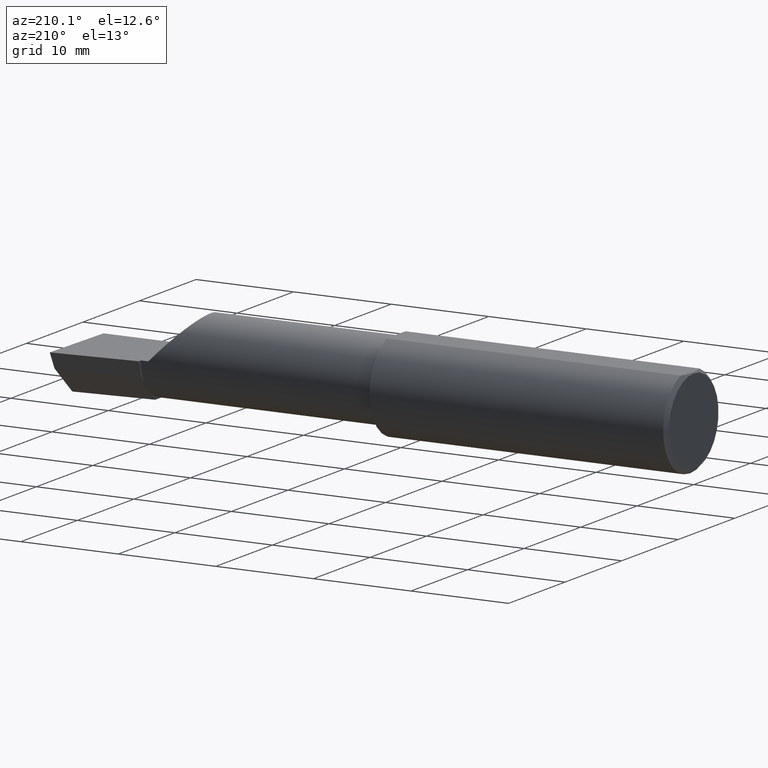
[diagram: clean part render]
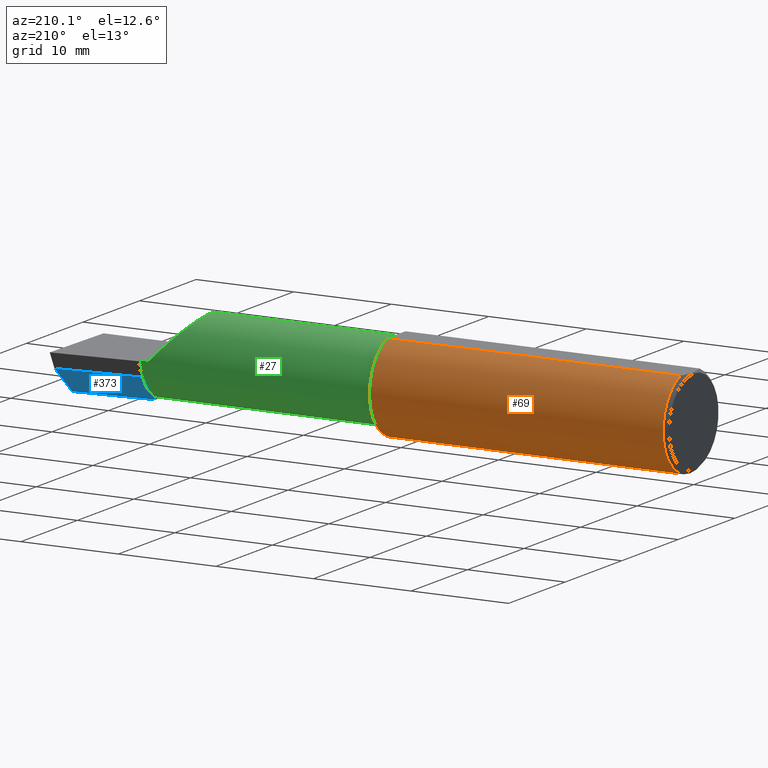
[diagram: same view with three faces highlighted in distinct colors, each labeled with its STEP entity id]
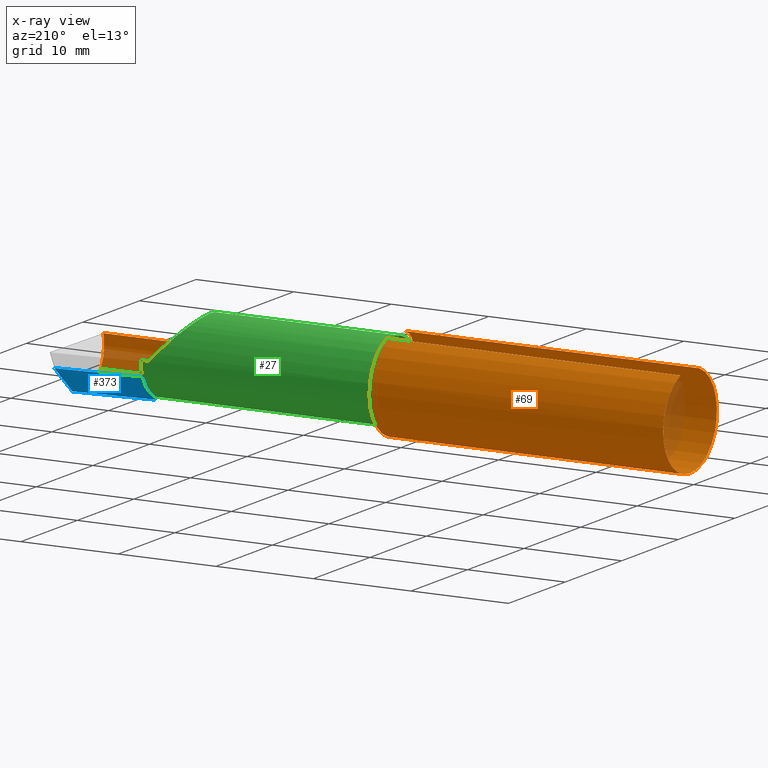
[diagram: x-ray of the same camera — body ghosted, the three highlighted faces saturated]
A machine part, auxiliary view with three faces highlighted in distinct colors.
The next image is the same camera in x-ray (body ghosted, the three faces saturated) — at least one of them is partly hidden behind the body in this view.
Their STEP definitions:

[orange] entity #69 — the highlighted cylindrical surface (partial cylindrical patch) has radius 4.7587 mm, axis along (-1, -0, -0).
#2 = CARTESIAN_POINT ( 'NONE',  ( 1.213610562096348877, -0.1338335382286872099, 0.1311728947444863180 ) ) ;
#3 = CARTESIAN_POINT ( 'NONE',  ( 1.217060058352116059, -0.1401415676386940368, -0.1243666343873851138 ) ) ;
#5 = CIRCLE ( 'NONE', #86, 0.1873499999999999888 ) ;
#8 = CARTESIAN_POINT ( 'NONE',  ( 1.692500000000000115, -0.1454917112299468074, 0.1180346748349050540 ) ) ;
#11 = CARTESIAN_POINT ( 'NONE',  ( 1.203931069367344397, -0.09745462642916713492, 0.1609342754328615399 ) ) ;
#15 = FACE_OUTER_BOUND ( 'NONE', #619, .T. ) ;
#28 = CARTESIAN_POINT ( 'NONE',  ( 1.199999999999999956, 0.06597272163553663527, 0.1753499999999999781 ) ) ;
#49 = CARTESIAN_POINT ( 'NONE',  ( 1.207485333659844118, -0.1155414972264653672, -0.1479248906558521259 ) ) ;
#60 = EDGE_CURVE ( 'NONE', #570, #328, #389, .T. ) ;
#69 = ADVANCED_FACE ( 'NONE', ( #15 ), #206, .T. ) ;
#71 = LINE ( 'NONE', #418, #594 ) ;
#75 = DIRECTION ( 'NONE',  ( 0.000000000000000000, 1.000000000000000000, 0.000000000000000000 ) ) ;
#86 = AXIS2_PLACEMENT_3D ( 'NONE', #109, #357, #306 ) ;
#90 = EDGE_CURVE ( 'NONE', #335, #584, #71, .T. ) ;
#91 = CARTESIAN_POINT ( 'NONE',  ( 2.086590019116435268, -0.1873500000000000165, 0.04340998088356443074 ) ) ;
#92 = ORIENTED_EDGE ( 'NONE', *, *, #123, .T. ) ;
#94 = VERTEX_POINT ( 'NONE', #261 ) ;
#100 = CARTESIAN_POINT ( 'NONE',  ( 1.222144995725004124, -0.1448851833857938698, -0.1187833539262090621 ) ) ;
#103 = CARTESIAN_POINT ( 'NONE',  ( 1.201116380138691264, -0.06597272163553657975, 0.1753499999999999781 ) ) ;
#106 = CARTESIAN_POINT ( 'NONE',  ( 1.212916881138097258, -0.1325294370633285645, -0.1325423110575142671 ) ) ;
#107 = CARTESIAN_POINT ( 'NONE',  ( 1.225000000000000089, -0.1454917112299475568, 0.1180346748349042352 ) ) ;
#109 = CARTESIAN_POINT ( 'NONE',  ( 0.01499999999999999424, 0.000000000000000000, 0.000000000000000000 ) ) ;
#114 = VERTEX_POINT ( 'NONE', #607 ) ;
#123 = EDGE_CURVE ( 'NONE', #227, #186, #207, .T. ) ;
#125 = ORIENTED_EDGE ( 'NONE', *, *, #356, .F. ) ;
#127 = CARTESIAN_POINT ( 'NONE',  ( 0.01499999999999997863, -0.06597272163553657975, 0.1753499999999999781 ) ) ;
#128 = ORIENTED_EDGE ( 'NONE', *, *, #162, .T. ) ;
#129 = EDGE_CURVE ( 'NONE', #328, #584, #217, .T. ) ;
#140 = B_SPLINE_CURVE_WITH_KNOTS ( 'NONE', 3,
 ( #103, #552, #11, #156, #395, #2, #497, #596, #352, #202, #400, #602, #152, #107 ),
 .UNSPECIFIED., .F., .F.,
 ( 4, 2, 2, 2, 2, 2, 4 ),
 ( 5.633523616107936189E-07, 0.001319819381107009085, 0.001979447395479707206, 0.002309261402666058002, 0.002474168406259232532, 0.002556621908055823483, 0.002639075409852414001 ),
 .UNSPECIFIED. ) ;
#150 = LINE ( 'NONE', #8, #157 ) ;
#152 = CARTESIAN_POINT ( 'NONE',  ( 1.223888626799697121, -0.1454917112299470849, 0.1180346748349045544 ) ) ;
#156 = CARTESIAN_POINT ( 'NONE',  ( 1.208327409769773597, -0.1182546610979338386, 0.1455684145307627186 ) ) ;
#157 = VECTOR ( 'NONE', #542, 39.37007874015748143 ) ;
#158 = CARTESIAN_POINT ( 'NONE',  ( 1.223475335450381341, -0.1454917112299472792, -0.1180346748349044850 ) ) ;
#162 = EDGE_CURVE ( 'NONE', #186, #114, #358, .T. ) ;
#165 = DIRECTION ( 'NONE',  ( 1.000000000000000000, 0.000000000000000000, 0.000000000000000000 ) ) ;
#167 = AXIS2_PLACEMENT_3D ( 'NONE', #367, #519, #75 ) ;
#169 = LINE ( 'NONE', #565, #283 ) ;
#170 = ORIENTED_EDGE ( 'NONE', *, *, #248, .T. ) ;
#186 = VERTEX_POINT ( 'NONE', #321 ) ;
#194 = CARTESIAN_POINT ( 'NONE',  ( 1.215943198097122258, -0.1383011673991934587, -0.1264147259943146917 ) ) ;
#198 = DIRECTION ( 'NONE',  ( 0.000000000000000000, 0.000000000000000000, 1.000000000000000000 ) ) ;
#201 = EDGE_CURVE ( 'NONE', #227, #570, #169, .T. ) ;
#202 = CARTESIAN_POINT ( 'NONE',  ( 1.220462485058698476, -0.1437494271365429566, 0.1201537477313801699 ) ) ;
#206 = CYLINDRICAL_SURFACE ( 'NONE', #246, 0.1873499999999999888 ) ;
#207 =( BOUNDED_CURVE ( )  B_SPLINE_CURVE ( 3, ( #363, #558, #318, #315 ),
 .UNSPECIFIED., .F., .T. ) 
 B_SPLINE_CURVE_WITH_KNOTS ( ( 4, 4 ),
 ( 0.6791649766273006872, 1.360746882514497491 ),
 .UNSPECIFIED. ) 
 CURVE ( )  GEOMETRIC_REPRESENTATION_ITEM ( )  RATIONAL_B_SPLINE_CURVE ( ( 1.000000000000000000, 0.9616603987079550553, 0.9616603987079550553, 1.000000000000000000 ) ) 
 REPRESENTATION_ITEM ( '' )  );
#217 = CIRCLE ( 'NONE', #167, 0.1873499999999999888 ) ;
#224 = ORIENTED_EDGE ( 'NONE', *, *, #391, .F. ) ;
#227 = VERTEX_POINT ( 'NONE', #236 ) ;
#235 = ORIENTED_EDGE ( 'NONE', *, *, #433, .T. ) ;
#236 = CARTESIAN_POINT ( 'NONE',  ( 2.477223734188807924, -0.1454917112299468074, -0.1180346748349050540 ) ) ;
#246 = AXIS2_PLACEMENT_3D ( 'NONE', #590, #595, #295 ) ;
#248 = EDGE_CURVE ( 'NONE', #114, #416, #276, .T. ) ;
#253 = CARTESIAN_POINT ( 'NONE',  ( 1.200336700870086037, -0.05340758954924543223, -0.1799583179751510220 ) ) ;
#261 = CARTESIAN_POINT ( 'NONE',  ( 1.225000000000000089, -0.1454917112299475568, 0.1180346748349042352 ) ) ;
#276 =( BOUNDED_CURVE ( )  B_SPLINE_CURVE ( 3, ( #336, #91, #533, #277 ),
 .UNSPECIFIED., .F., .F. ) 
 B_SPLINE_CURVE_WITH_KNOTS ( ( 4, 4 ),
 ( 4.712388980384689674, 5.393970886271890031 ),
 .UNSPECIFIED. ) 
 CURVE ( )  GEOMETRIC_REPRESENTATION_ITEM ( )  RATIONAL_B_SPLINE_CURVE ( ( 1.000000000000000000, 0.9616603987079546112, 0.9616603987079546112, 1.000000000000000000 ) ) 
 REPRESENTATION_ITEM ( '' )  );
#277 = CARTESIAN_POINT ( 'NONE',  ( 2.011965325165093077, -0.1454917112299461968, 0.1180346748349056646 ) ) ;
#283 = VECTOR ( 'NONE', #307, 39.37007874015748143 ) ;
#295 = DIRECTION ( 'NONE',  ( 0.000000000000000000, 0.000000000000000000, 1.000000000000000000 ) ) ;
#302 = CARTESIAN_POINT ( 'NONE',  ( 1.201697995486591175, -0.07541755249016977858, -0.1718998534213997675 ) ) ;
#304 = CARTESIAN_POINT ( 'NONE',  ( 1.199999999999999956, -0.03015080213903810827, -0.1849079544810676157 ) ) ;
#306 = DIRECTION ( 'NONE',  ( 0.000000000000000000, 0.000000000000000000, 1.000000000000000000 ) ) ;
#307 = DIRECTION ( 'NONE',  ( -1.000000000000000000, 6.829619984160658046E-18, -0.000000000000000000 ) ) ;
#310 = CIRCLE ( 'NONE', #486, 0.1873499999999999888 ) ;
#315 = CARTESIAN_POINT ( 'NONE',  ( 2.490625440078237940, -0.1873499999999999888, 6.926778495256700803E-17 ) ) ;
#316 = ORIENTED_EDGE ( 'NONE', *, *, #60, .F. ) ;
#318 = CARTESIAN_POINT ( 'NONE',  ( 2.485293537526806151, -0.1873500000000000443, -0.04340998088356413931 ) ) ;
#319 = VERTEX_POINT ( 'NONE', #127 ) ;
#321 = CARTESIAN_POINT ( 'NONE',  ( 2.490625440078237940, -0.1873499999999999888, 6.926778495256700803E-17 ) ) ;
#328 = VERTEX_POINT ( 'NONE', #522 ) ;
#335 = VERTEX_POINT ( 'NONE', #472 ) ;
#336 = CARTESIAN_POINT ( 'NONE',  ( 2.129999999999999893, -0.1873499999999999888, 1.065442715258197396E-16 ) ) ;
#348 = CARTESIAN_POINT ( 'NONE',  ( 0.01499999999999999424, 0.000000000000000000, 0.000000000000000000 ) ) ;
#349 = CARTESIAN_POINT ( 'NONE',  ( 1.220088327122037075, -0.1434986192849199149, -0.1204547541528176863 ) ) ;
#352 = CARTESIAN_POINT ( 'NONE',  ( 1.218558384071252387, -0.1420205060553830778, 0.1222022583412207819 ) ) ;
#353 = CARTESIAN_POINT ( 'NONE',  ( 1.200000000000000178, -0.04186526254461788582, -0.1829978128711760021 ) ) ;
#356 = EDGE_CURVE ( 'NONE', #94, #416, #150, .T. ) ;
#357 = DIRECTION ( 'NONE',  ( -1.000000000000000000, -0.000000000000000000, -0.000000000000000000 ) ) ;
#358 = LINE ( 'NONE', #512, #362 ) ;
#361 = CARTESIAN_POINT ( 'NONE',  ( 0.01499999999999999424, 0.000000000000000000, -0.1873499999999999888 ) ) ;
#362 = VECTOR ( 'NONE', #462, 39.37007874015748143 ) ;
#363 = CARTESIAN_POINT ( 'NONE',  ( 2.477223734188807924, -0.1454917112299468074, -0.1180346748349050540 ) ) ;
#367 = CARTESIAN_POINT ( 'NONE',  ( 1.199999999999999956, 0.000000000000000000, 0.000000000000000000 ) ) ;
#371 = ORIENTED_EDGE ( 'NONE', *, *, #556, .F. ) ;
#389 = B_SPLINE_CURVE_WITH_KNOTS ( 'NONE', 3,
 ( #601, #158, #100, #349, #445, #3, #194, #106, #597, #49, #392, #494, #302, #253, #353, #304 ),
 .UNSPECIFIED., .F., .F.,
 ( 4, 2, 2, 2, 2, 2, 2, 4 ),
 ( 1.966851289154467447E-07, 0.0001144729266691436116, 0.0002287491682093717937, 0.0004573016512898342022, 0.0009144066174507615129, 0.001828616549772619712, 0.002742826482094477478, 0.003657036414416335243 ),
 .UNSPECIFIED. ) ;
#391 = EDGE_CURVE ( 'NONE', #574, #319, #310, .T. ) ;
#392 = CARTESIAN_POINT ( 'NONE',  ( 1.205627379275792554, -0.1060494212093237160, -0.1548887329701210402 ) ) ;
#395 = CARTESIAN_POINT ( 'NONE',  ( 1.210055759795568342, -0.1247930883238200644, 0.1399914093379786006 ) ) ;
#397 = LINE ( 'NONE', #489, #571 ) ;
#400 = CARTESIAN_POINT ( 'NONE',  ( 1.221175406146075337, -0.1442942897112284850, 0.1194974872566935686 ) ) ;
#416 = VERTEX_POINT ( 'NONE', #547 ) ;
#418 = CARTESIAN_POINT ( 'NONE',  ( 0.000000000000000000, 0.06597272163553663527, 0.1753499999999999781 ) ) ;
#425 = EDGE_CURVE ( 'NONE', #483, #94, #140, .T. ) ;
#433 = EDGE_CURVE ( 'NONE', #483, #319, #397, .T. ) ;
#445 = CARTESIAN_POINT ( 'NONE',  ( 1.219258671360876400, -0.1426776373316543389, -0.1214281201482011047 ) ) ;
#462 = DIRECTION ( 'NONE',  ( -1.000000000000000000, -0.000000000000000000, -0.000000000000000000 ) ) ;
#464 = CARTESIAN_POINT ( 'NONE',  ( 1.225000000000000089, -0.1454917112299470849, -0.1180346748349046931 ) ) ;
#472 = CARTESIAN_POINT ( 'NONE',  ( 0.01499999999999999424, 0.06597272163553663527, 0.1753499999999999781 ) ) ;
#477 = ORIENTED_EDGE ( 'NONE', *, *, #90, .T. ) ;
#483 = VERTEX_POINT ( 'NONE', #500 ) ;
#486 = AXIS2_PLACEMENT_3D ( 'NONE', #348, #600, #198 ) ;
#489 = CARTESIAN_POINT ( 'NONE',  ( 0.000000000000000000, -0.06597272163553657975, 0.1753499999999999781 ) ) ;
#493 = DIRECTION ( 'NONE',  ( -1.000000000000000000, -0.000000000000000000, -0.000000000000000000 ) ) ;
#494 = CARTESIAN_POINT ( 'NONE',  ( 1.202713316750944950, -0.08594842947873618244, -0.1668827936309215942 ) ) ;
#497 = CARTESIAN_POINT ( 'NONE',  ( 1.214940665466612613, -0.1367234982206463056, 0.1281512008975642936 ) ) ;
#498 = ORIENTED_EDGE ( 'NONE', *, *, #425, .F. ) ;
#500 = CARTESIAN_POINT ( 'NONE',  ( 1.201116380138691264, -0.06597272163553657975, 0.1753499999999999781 ) ) ;
#512 = CARTESIAN_POINT ( 'NONE',  ( 3.377502344341257155E-32, -0.1873499999999999610, 3.267291166268304703E-16 ) ) ;
#519 = DIRECTION ( 'NONE',  ( 1.000000000000000000, -6.829619984160658046E-18, 0.000000000000000000 ) ) ;
#520 = ORIENTED_EDGE ( 'NONE', *, *, #129, .F. ) ;
#522 = CARTESIAN_POINT ( 'NONE',  ( 1.199999999999999956, -0.03015080213903810827, -0.1849079544810676157 ) ) ;
#523 = ORIENTED_EDGE ( 'NONE', *, *, #201, .F. ) ;
#533 = CARTESIAN_POINT ( 'NONE',  ( 2.045676520271626941, -0.1728409665178085863, 0.08432347972837213324 ) ) ;
#542 = DIRECTION ( 'NONE',  ( 1.000000000000000000, -6.829619984160658046E-18, 0.000000000000000000 ) ) ;
#547 = CARTESIAN_POINT ( 'NONE',  ( 2.011965325165093077, -0.1454917112299461968, 0.1180346748349056646 ) ) ;
#552 = CARTESIAN_POINT ( 'NONE',  ( 1.202180260693407554, -0.08231188685414678186, 0.1692026421515573364 ) ) ;
#556 = EDGE_CURVE ( 'NONE', #335, #574, #5, .T. ) ;
#558 = CARTESIAN_POINT ( 'NONE',  ( 2.480648201915109929, -0.1728409665178088084, -0.08432347972837167527 ) ) ;
#565 = CARTESIAN_POINT ( 'NONE',  ( 1.692500000000000115, -0.1454917112299468074, -0.1180346748349050540 ) ) ;
#570 = VERTEX_POINT ( 'NONE', #464 ) ;
#571 = VECTOR ( 'NONE', #493, 39.37007874015748143 ) ;
#574 = VERTEX_POINT ( 'NONE', #361 ) ;
#584 = VERTEX_POINT ( 'NONE', #28 ) ;
#590 = CARTESIAN_POINT ( 'NONE',  ( 0.000000000000000000, 0.000000000000000000, 0.000000000000000000 ) ) ;
#594 = VECTOR ( 'NONE', #165, 39.37007874015748143 ) ;
#595 = DIRECTION ( 'NONE',  ( -1.000000000000000000, -0.000000000000000000, -0.000000000000000000 ) ) ;
#596 = CARTESIAN_POINT ( 'NONE',  ( 1.217580983404113804, -0.1407350872998852087, 0.1236837232298109435 ) ) ;
#597 = CARTESIAN_POINT ( 'NONE',  ( 1.211427394884099673, -0.1284293148232741044, -0.1365241029388003235 ) ) ;
#600 = DIRECTION ( 'NONE',  ( -1.000000000000000000, -0.000000000000000000, -0.000000000000000000 ) ) ;
#601 = CARTESIAN_POINT ( 'NONE',  ( 1.225000000000000089, -0.1454917112299470849, -0.1180346748349046931 ) ) ;
#602 = CARTESIAN_POINT ( 'NONE',  ( 1.222867149423749078, -0.1451640434845494765, 0.1184394021563237032 ) ) ;
#607 = CARTESIAN_POINT ( 'NONE',  ( 2.129999999999999893, -0.1873499999999999888, 1.065442715258197396E-16 ) ) ;
#619 = EDGE_LOOP ( 'NONE', ( #523, #92, #128, #170, #125, #498, #235, #224, #371, #477, #520, #316 ) ) ;

[blue] entity #373 — the highlighted planar face has unit normal (-0.0689, 0.716, -0.6947).
#4 = CARTESIAN_POINT ( 'NONE',  ( 2.491169618080469217, 0.05430702260361125466, -0.1600499999999999701 ) ) ;
#9 = VERTEX_POINT ( 'NONE', #108 ) ;
#31 = CARTESIAN_POINT ( 'NONE',  ( 2.160000000000000142, 0.1010446066476776983, -0.07900565447499380278 ) ) ;
#58 = CARTESIAN_POINT ( 'NONE',  ( 2.492483720199198949, 0.1538199878950242405, -0.05760614975163728946 ) ) ;
#63 = VECTOR ( 'NONE', #346, 39.37007874015748854 ) ;
#108 = CARTESIAN_POINT ( 'NONE',  ( 2.477259974483429161, 0.05296767626088545039, -0.1600499999999999701 ) ) ;
#112 = CARTESIAN_POINT ( 'NONE',  ( 2.160000000000000142, 0.02241901528670510110, -0.1600499999999999701 ) ) ;
#122 = CARTESIAN_POINT ( 'NONE',  ( 2.160000000000000142, 0.1010446066476776983, -0.07900565447499380278 ) ) ;
#143 = CARTESIAN_POINT ( 'NONE',  ( 2.160000000000000142, 0.04400172171466215643, -0.1378033461200730836 ) ) ;
#154 = FACE_OUTER_BOUND ( 'NONE', #359, .T. ) ;
#176 = VERTEX_POINT ( 'NONE', #112 ) ;
#179 = VERTEX_POINT ( 'NONE', #469 ) ;
#190 = EDGE_CURVE ( 'NONE', #287, #176, #614, .T. ) ;
#193 = LINE ( 'NONE', #589, #63 ) ;
#195 = VECTOR ( 'NONE', #196, 39.37007874015748854 ) ;
#196 = DIRECTION ( 'NONE',  ( -0.9953961983671800740, -0.09584575252021031166, 0.000000000000000000 ) ) ;
#204 = LINE ( 'NONE', #58, #446 ) ;
#209 = DIRECTION ( 'NONE',  ( -4.755568962650852027E-18, -0.6963153109074922131, -0.7177360153954949196 ) ) ;
#230 = LINE ( 'NONE', #374, #424 ) ;
#231 = ORIENTED_EDGE ( 'NONE', *, *, #309, .F. ) ;
#237 = ORIENTED_EDGE ( 'NONE', *, *, #598, .F. ) ;
#250 = DIRECTION ( 'NONE',  ( -0.06894566448119622548, 0.7160281025913036723, -0.6946583704589932573 ) ) ;
#265 = ORIENTED_EDGE ( 'NONE', *, *, #546, .F. ) ;
#287 = VERTEX_POINT ( 'NONE', #143 ) ;
#294 = CARTESIAN_POINT ( 'NONE',  ( 2.511712141217646632, 0.1533490680423130470, -0.05999999999999999084 ) ) ;
#309 = EDGE_CURVE ( 'NONE', #378, #179, #230, .T. ) ;
#331 = AXIS2_PLACEMENT_3D ( 'NONE', #294, #250, #491 ) ;
#339 = LINE ( 'NONE', #4, #195 ) ;
#346 = DIRECTION ( 'NONE',  ( -4.755568962650852027E-18, -0.6963153109074922131, -0.7177360153954949196 ) ) ;
#359 = EDGE_LOOP ( 'NONE', ( #237, #576, #432, #265, #536, #231 ) ) ;
#368 = VERTEX_POINT ( 'NONE', #450 ) ;
#373 = ADVANCED_FACE ( 'NONE', ( #154 ), #442, .T. ) ;
#374 = CARTESIAN_POINT ( 'NONE',  ( 2.511712141217646632, 0.1533490680423130470, -0.05999999999999999084 ) ) ;
#375 = VECTOR ( 'NONE', #209, 39.37007874015748854 ) ;
#378 = VERTEX_POINT ( 'NONE', #444 ) ;
#394 = VECTOR ( 'NONE', #515, 39.37007874015748854 ) ;
#420 = EDGE_CURVE ( 'NONE', #9, #176, #339, .T. ) ;
#424 = VECTOR ( 'NONE', #582, 39.37007874015748854 ) ;
#432 = ORIENTED_EDGE ( 'NONE', *, *, #190, .F. ) ;
#441 = EDGE_CURVE ( 'NONE', #179, #368, #193, .T. ) ;
#442 = PLANE ( 'NONE',  #331 ) ;
#444 = CARTESIAN_POINT ( 'NONE',  ( 2.492127980275578913, 0.1514633278254541582, -0.05999999999999998390 ) ) ;
#446 = VECTOR ( 'NONE', #502, 39.37007874015748143 ) ;
#450 = CARTESIAN_POINT ( 'NONE',  ( 2.160000000000000142, 0.1028057716897399776, -0.07719031082256679055 ) ) ;
#469 = CARTESIAN_POINT ( 'NONE',  ( 2.160000000000000142, 0.1194830407249524440, -0.05999999999999999084 ) ) ;
#491 = DIRECTION ( 'NONE',  ( 0.000000000000000000, 0.6963153109074923242, 0.7177360153954949196 ) ) ;
#502 = DIRECTION ( 'NONE',  ( 0.1053106618242479892, 0.6976485211320153645, 0.7086580314005131997 ) ) ;
#514 = LINE ( 'NONE', #122, #375 ) ;
#515 = DIRECTION ( 'NONE',  ( -4.755568962650852027E-18, -0.6963153109074922131, -0.7177360153954949196 ) ) ;
#536 = ORIENTED_EDGE ( 'NONE', *, *, #441, .F. ) ;
#546 = EDGE_CURVE ( 'NONE', #368, #287, #514, .T. ) ;
#576 = ORIENTED_EDGE ( 'NONE', *, *, #420, .T. ) ;
#582 = DIRECTION ( 'NONE',  ( -0.9953961983671800740, -0.09584575252021031166, 0.000000000000000000 ) ) ;
#589 = CARTESIAN_POINT ( 'NONE',  ( 2.160000000000000142, 0.1010446066476776983, -0.07900565447499380278 ) ) ;
#598 = EDGE_CURVE ( 'NONE', #9, #378, #204, .T. ) ;
#614 = LINE ( 'NONE', #31, #394 ) ;

[green] entity #27 — the highlighted cylindrical surface (partial cylindrical patch) has radius 4.0653 mm, axis along (-1, 0, -0).
#6 = EDGE_CURVE ( 'NONE', #57, #480, #492, .T. ) ;
#7 = CARTESIAN_POINT ( 'NONE',  ( 2.160000000000000142, -0.03740000000000000269, 0.000000000000000000 ) ) ;
#8 = CARTESIAN_POINT ( 'NONE',  ( 1.692500000000000115, -0.1454917112299468074, 0.1180346748349050540 ) ) ;
#27 = ADVANCED_FACE ( 'NONE', ( #151 ), #59, .T. ) ;
#38 = CARTESIAN_POINT ( 'NONE',  ( 1.093080678464946361E-18, 0.1226499999999998841, 3.267291166268304703E-16 ) ) ;
#43 = ORIENTED_EDGE ( 'NONE', *, *, #625, .T. ) ;
#53 = CIRCLE ( 'NONE', #423, 0.1600499999999999701 ) ;
#57 = VERTEX_POINT ( 'NONE', #347 ) ;
#59 = CYLINDRICAL_SURFACE ( 'NONE', #507, 0.1600499999999999146 ) ;
#72 = EDGE_CURVE ( 'NONE', #287, #368, #333, .T. ) ;
#74 = CARTESIAN_POINT ( 'NONE',  ( 2.129999999999999893, 0.1226499999999998147, 1.065442715258197396E-16 ) ) ;
#94 = VERTEX_POINT ( 'NONE', #261 ) ;
#97 = ORIENTED_EDGE ( 'NONE', *, *, #326, .T. ) ;
#101 = DIRECTION ( 'NONE',  ( 0.000000000000000000, -1.000000000000000000, 0.000000000000000000 ) ) ;
#119 = CARTESIAN_POINT ( 'NONE',  ( 2.474646882977779683, -0.1156304438478839708, -0.1453804992321580114 ) ) ;
#124 = CARTESIAN_POINT ( 'NONE',  ( 2.477223734188807924, -0.1454917112299468074, -0.1180346748349050540 ) ) ;
#141 = EDGE_CURVE ( 'NONE', #227, #57, #299, .T. ) ;
#143 = CARTESIAN_POINT ( 'NONE',  ( 2.160000000000000142, 0.04400172171466215643, -0.1378033461200730836 ) ) ;
#145 = CARTESIAN_POINT ( 'NONE',  ( 1.225000000000000089, -0.03739999999999999575, 0.000000000000000000 ) ) ;
#146 = EDGE_CURVE ( 'NONE', #416, #513, #434, .T. ) ;
#147 = ORIENTED_EDGE ( 'NONE', *, *, #141, .F. ) ;
#150 = LINE ( 'NONE', #8, #157 ) ;
#151 = FACE_OUTER_BOUND ( 'NONE', #429, .T. ) ;
#153 = DIRECTION ( 'NONE',  ( 0.000000000000000000, -1.000000000000000000, 0.000000000000000000 ) ) ;
#157 = VECTOR ( 'NONE', #542, 39.37007874015748143 ) ;
#161 = CARTESIAN_POINT ( 'NONE',  ( 2.129999999999999893, 0.1226499999999998147, 1.065442715258197396E-16 ) ) ;
#166 = CIRCLE ( 'NONE', #528, 0.1600499999999999701 ) ;
#169 = LINE ( 'NONE', #565, #283 ) ;
#175 = DIRECTION ( 'NONE',  ( 1.000000000000000000, -6.829619984160658046E-18, 0.000000000000000000 ) ) ;
#187 = VECTOR ( 'NONE', #175, 39.37007874015748143 ) ;
#197 = DIRECTION ( 'NONE',  ( 1.000000000000000000, -6.829619984160658046E-18, 0.000000000000000000 ) ) ;
#199 = DIRECTION ( 'NONE',  ( -1.000000000000000000, 5.691349986800549142E-18, -0.000000000000000000 ) ) ;
#201 = EDGE_CURVE ( 'NONE', #227, #570, #169, .T. ) ;
#210 = CARTESIAN_POINT ( 'NONE',  ( 1.902393788885675230, -0.02584108761840225171, 0.2276062111143221378 ) ) ;
#214 = CARTESIAN_POINT ( 'NONE',  ( 2.160000000000000142, -0.03740000000000000269, 0.000000000000000000 ) ) ;
#226 = LINE ( 'NONE', #38, #187 ) ;
#227 = VERTEX_POINT ( 'NONE', #236 ) ;
#236 = CARTESIAN_POINT ( 'NONE',  ( 2.477223734188807924, -0.1454917112299468074, -0.1180346748349050540 ) ) ;
#251 = DIRECTION ( 'NONE',  ( -1.000000000000000000, 6.829619984160658046E-18, -0.000000000000000000 ) ) ;
#255 = CARTESIAN_POINT ( 'NONE',  ( 2.160000000000000142, 0.1226499999999999674, 3.267291166268307168E-16 ) ) ;
#261 = CARTESIAN_POINT ( 'NONE',  ( 1.225000000000000089, -0.1454917112299475568, 0.1180346748349042352 ) ) ;
#264 = CARTESIAN_POINT ( 'NONE',  ( 2.011965325165093077, -0.1454917112299461968, 0.1180346748349056646 ) ) ;
#268 = CIRCLE ( 'NONE', #495, 0.1600499999999998313 ) ;
#269 = VECTOR ( 'NONE', #199, 39.37007874015748143 ) ;
#283 = VECTOR ( 'NONE', #307, 39.37007874015748143 ) ;
#286 = DIRECTION ( 'NONE',  ( -1.000000000000000000, 6.829619984160658046E-18, -0.000000000000000000 ) ) ;
#287 = VERTEX_POINT ( 'NONE', #143 ) ;
#299 =( BOUNDED_CURVE ( )  B_SPLINE_CURVE ( 3, ( #124, #119, #568, #562 ),
 .UNSPECIFIED., .F., .T. ) 
 B_SPLINE_CURVE_WITH_KNOTS ( ( 4, 4 ),
 ( 5.751779107031783411, 6.493234751459985965 ),
 .UNSPECIFIED. ) 
 CURVE ( )  GEOMETRIC_REPRESENTATION_ITEM ( )  RATIONAL_B_SPLINE_CURVE ( ( 1.000000000000000000, 0.9547092712975350226, 0.9547092712975350226, 1.000000000000000000 ) ) 
 REPRESENTATION_ITEM ( '' )  );
#305 = EDGE_CURVE ( 'NONE', #513, #516, #226, .T. ) ;
#307 = DIRECTION ( 'NONE',  ( -1.000000000000000000, 6.829619984160658046E-18, -0.000000000000000000 ) ) ;
#324 = CARTESIAN_POINT ( 'NONE',  ( 2.160000000000000142, -0.03740000000000000269, 0.000000000000000000 ) ) ;
#326 = EDGE_CURVE ( 'NONE', #516, #368, #53, .T. ) ;
#333 = CIRCLE ( 'NONE', #414, 0.1600499999999999146 ) ;
#347 = CARTESIAN_POINT ( 'NONE',  ( 2.474893613600468445, -0.03739999999999999575, -0.1600499999999999701 ) ) ;
#356 = EDGE_CURVE ( 'NONE', #94, #416, #150, .T. ) ;
#365 = DIRECTION ( 'NONE',  ( 0.000000000000000000, -1.000000000000000000, 0.000000000000000000 ) ) ;
#368 = VERTEX_POINT ( 'NONE', #450 ) ;
#390 = DIRECTION ( 'NONE',  ( -1.000000000000000000, 6.829619984160658046E-18, -0.000000000000000000 ) ) ;
#398 = CARTESIAN_POINT ( 'NONE',  ( 2.500000000000000000, -0.03739999999999999575, -0.1600499999999999701 ) ) ;
#401 = CARTESIAN_POINT ( 'NONE',  ( 0.000000000000000000, -0.03739999999999998881, 0.000000000000000000 ) ) ;
#414 = AXIS2_PLACEMENT_3D ( 'NONE', #7, #197, #153 ) ;
#416 = VERTEX_POINT ( 'NONE', #547 ) ;
#422 = ORIENTED_EDGE ( 'NONE', *, *, #356, .T. ) ;
#423 = AXIS2_PLACEMENT_3D ( 'NONE', #324, #286, #431 ) ;
#429 = EDGE_LOOP ( 'NONE', ( #147, #629, #504, #422, #467, #440, #97, #463, #43, #588 ) ) ;
#431 = DIRECTION ( 'NONE',  ( 0.000000000000000000, -1.000000000000000000, 0.000000000000000000 ) ) ;
#434 =( BOUNDED_CURVE ( )  B_SPLINE_CURVE ( 3, ( #264, #210, #555, #161 ),
 .UNSPECIFIED., .F., .F. ) 
 B_SPLINE_CURVE_WITH_KNOTS ( ( 4, 4 ),
 ( 5.541729662751389007, 7.853981633974482790 ),
 .UNSPECIFIED. ) 
 CURVE ( )  GEOMETRIC_REPRESENTATION_ITEM ( )  RATIONAL_B_SPLINE_CURVE ( ( 1.000000000000000000, 0.6019254882129729811, 0.6019254882129729811, 1.000000000000000000 ) ) 
 REPRESENTATION_ITEM ( '' )  );
#440 = ORIENTED_EDGE ( 'NONE', *, *, #305, .T. ) ;
#448 = CARTESIAN_POINT ( 'NONE',  ( 2.160000000000000142, -0.03739999999999999575, -0.1600499999999999701 ) ) ;
#450 = CARTESIAN_POINT ( 'NONE',  ( 2.160000000000000142, 0.1028057716897399776, -0.07719031082256679055 ) ) ;
#452 = EDGE_CURVE ( 'NONE', #94, #570, #268, .T. ) ;
#461 = DIRECTION ( 'NONE',  ( -1.000000000000000000, 6.829619984160658046E-18, -0.000000000000000000 ) ) ;
#463 = ORIENTED_EDGE ( 'NONE', *, *, #72, .F. ) ;
#464 = CARTESIAN_POINT ( 'NONE',  ( 1.225000000000000089, -0.1454917112299470849, -0.1180346748349046931 ) ) ;
#467 = ORIENTED_EDGE ( 'NONE', *, *, #146, .T. ) ;
#480 = VERTEX_POINT ( 'NONE', #448 ) ;
#492 = LINE ( 'NONE', #398, #269 ) ;
#495 = AXIS2_PLACEMENT_3D ( 'NONE', #145, #390, #101 ) ;
#504 = ORIENTED_EDGE ( 'NONE', *, *, #452, .F. ) ;
#507 = AXIS2_PLACEMENT_3D ( 'NONE', #401, #251, #540 ) ;
#513 = VERTEX_POINT ( 'NONE', #74 ) ;
#516 = VERTEX_POINT ( 'NONE', #255 ) ;
#528 = AXIS2_PLACEMENT_3D ( 'NONE', #214, #461, #365 ) ;
#540 = DIRECTION ( 'NONE',  ( -6.829619984160657276E-18, -1.000000000000000000, 0.000000000000000000 ) ) ;
#542 = DIRECTION ( 'NONE',  ( 1.000000000000000000, -6.829619984160658046E-18, 0.000000000000000000 ) ) ;
#547 = CARTESIAN_POINT ( 'NONE',  ( 2.011965325165093077, -0.1454917112299461968, 0.1180346748349056646 ) ) ;
#555 = CARTESIAN_POINT ( 'NONE',  ( 1.967758842172328881, 0.1226499999999999396, 0.1622411578276698185 ) ) ;
#562 = CARTESIAN_POINT ( 'NONE',  ( 2.474893613600468445, -0.03739999999999999575, -0.1600499999999999701 ) ) ;
#565 = CARTESIAN_POINT ( 'NONE',  ( 1.692500000000000115, -0.1454917112299468074, -0.1180346748349050540 ) ) ;
#568 = CARTESIAN_POINT ( 'NONE',  ( 2.473833329693936101, -0.07789060880782665286, -0.1600499999999999423 ) ) ;
#570 = VERTEX_POINT ( 'NONE', #464 ) ;
#588 = ORIENTED_EDGE ( 'NONE', *, *, #6, .F. ) ;
#625 = EDGE_CURVE ( 'NONE', #287, #480, #166, .T. ) ;
#629 = ORIENTED_EDGE ( 'NONE', *, *, #201, .T. ) ;